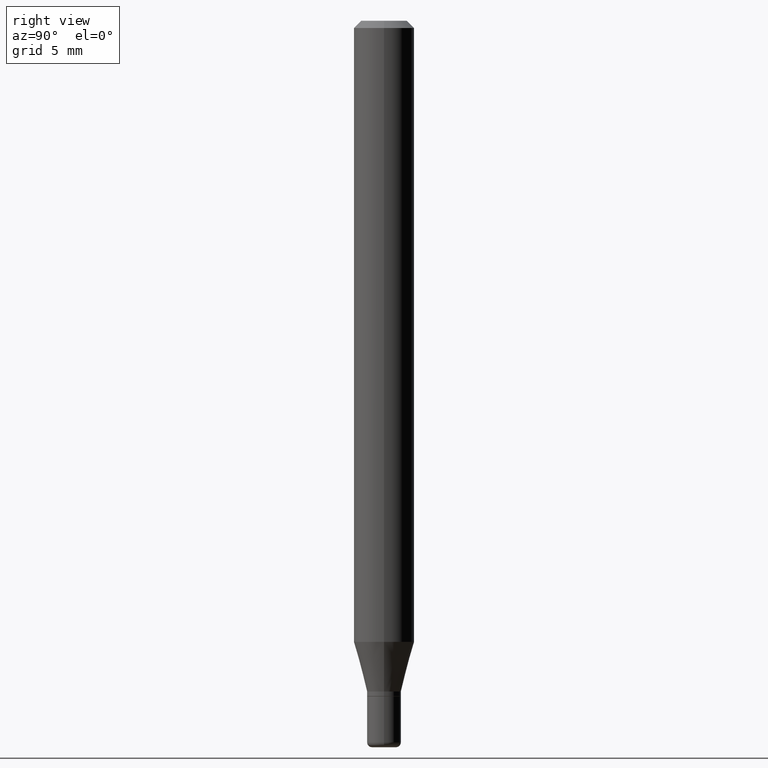
[diagram: clean part render]
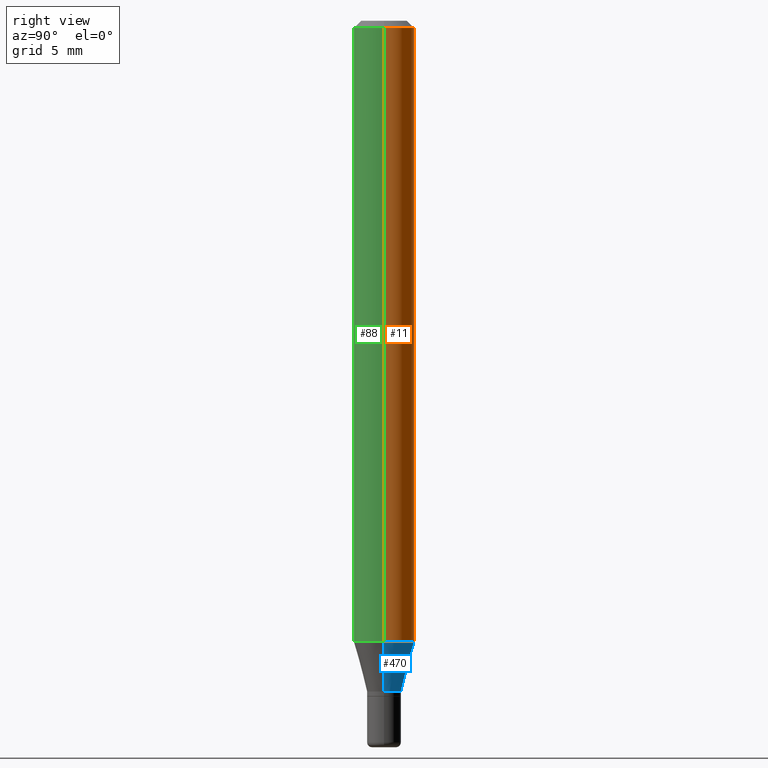
[diagram: same view with three faces highlighted in distinct colors, each labeled with its STEP entity id]
A machine part, right view with three faces highlighted in distinct colors.
Their STEP definitions:

[orange] entity #11 — the highlighted cylindrical surface (edge-blend (fillet) strip) has radius 1.5875 mm, axis along (-0, 0, 1).
#9 = EDGE_LOOP ( 'NONE', ( #506, #295, #185, #302 ) ) ;
#11 = ADVANCED_FACE ( 'NONE', ( #181 ), #218, .T. ) ;
#34 = CARTESIAN_POINT ( 'NONE',  ( 0.06250000000000000000, -4.913801213521515384E-15, -1.282368602791855938 ) ) ;
#65 = DIRECTION ( 'NONE',  ( 1.000000000000000000, -6.982962677686266711E-15, 4.876176775795935793E-29 ) ) ;
#68 = DIRECTION ( 'NONE',  ( -2.445468806185136597E-29, 3.491481338843145583E-15, 1.000000000000000000 ) ) ;
#93 = VERTEX_POINT ( 'NONE', #424 ) ;
#102 = DIRECTION ( 'NONE',  ( -2.445468806185136597E-29, 3.491481338843145583E-15, 1.000000000000000000 ) ) ;
#106 = CIRCLE ( 'NONE', #333, 0.06250000000000000000 ) ;
#109 = EDGE_CURVE ( 'NONE', #139, #408, #198, .T. ) ;
#126 = EDGE_CURVE ( 'NONE', #93, #408, #106, .T. ) ;
#139 = VERTEX_POINT ( 'NONE', #195 ) ;
#144 = CARTESIAN_POINT ( 'NONE',  ( 3.135992416158701602E-29, -4.477366046166122926E-15, -1.282368602791855938 ) ) ;
#152 = VECTOR ( 'NONE', #316, 39.37007874015748143 ) ;
#159 = CARTESIAN_POINT ( 'NONE',  ( -0.06250000000000000000, 4.440892098500626162E-16, -3.074334431409316114E-30 ) ) ;
#181 = FACE_OUTER_BOUND ( 'NONE', #9, .T. ) ;
#185 = ORIENTED_EDGE ( 'NONE', *, *, #126, .F. ) ;
#194 = LINE ( 'NONE', #461, #251 ) ;
#195 = CARTESIAN_POINT ( 'NONE',  ( -0.06250000000000000000, -4.033276836316059521E-15, -1.282368602791855938 ) ) ;
#198 = LINE ( 'NONE', #159, #152 ) ;
#217 = VERTEX_POINT ( 'NONE', #34 ) ;
#218 = CYLINDRICAL_SURFACE ( 'NONE', #269, 0.06250000000000000000 ) ;
#251 = VECTOR ( 'NONE', #277, 39.37007874015748143 ) ;
#262 = AXIS2_PLACEMENT_3D ( 'NONE', #144, #102, #395 ) ;
#269 = AXIS2_PLACEMENT_3D ( 'NONE', #495, #378, #65 ) ;
#273 = DIRECTION ( 'NONE',  ( 1.000000000000000000, -6.982962677686266711E-15, 0.000000000000000000 ) ) ;
#277 = DIRECTION ( 'NONE',  ( -2.445468806185136877E-29, 3.491481338843145188E-15, 1.000000000000000000 ) ) ;
#286 = CIRCLE ( 'NONE', #262, 0.06250000000000000000 ) ;
#295 = ORIENTED_EDGE ( 'NONE', *, *, #109, .T. ) ;
#302 = ORIENTED_EDGE ( 'NONE', *, *, #365, .F. ) ;
#307 = CARTESIAN_POINT ( 'NONE',  ( 3.668203209277632395E-31, -5.237222008264614861E-17, -0.01499999999999970281 ) ) ;
#316 = DIRECTION ( 'NONE',  ( -2.445468806185136877E-29, 3.491481338843145188E-15, 1.000000000000000000 ) ) ;
#333 = AXIS2_PLACEMENT_3D ( 'NONE', #307, #68, #273 ) ;
#344 = EDGE_CURVE ( 'NONE', #217, #139, #286, .T. ) ;
#365 = EDGE_CURVE ( 'NONE', #217, #93, #194, .T. ) ;
#378 = DIRECTION ( 'NONE',  ( -2.445468806185136597E-29, 3.491481338843145583E-15, 1.000000000000000000 ) ) ;
#395 = DIRECTION ( 'NONE',  ( 1.000000000000000000, -6.982962677686262766E-15, 0.000000000000000000 ) ) ;
#408 = VERTEX_POINT ( 'NONE', #426 ) ;
#424 = CARTESIAN_POINT ( 'NONE',  ( 0.06250000000000000000, -4.888073874380378612E-16, -0.01499999999999970281 ) ) ;
#426 = CARTESIAN_POINT ( 'NONE',  ( -0.06250000000000000000, -1.820779923274321795E-15, -0.01499999999999970281 ) ) ;
#461 = CARTESIAN_POINT ( 'NONE',  ( 0.06250000000000000000, -4.364351673553916694E-16, 3.047610484872459871E-30 ) ) ;
#495 = CARTESIAN_POINT ( 'NONE',  ( 0.000000000000000000, 0.000000000000000000, 0.000000000000000000 ) ) ;
#506 = ORIENTED_EDGE ( 'NONE', *, *, #344, .T. ) ;

[blue] entity #470 — the highlighted conical surface has half-angle 15 deg.
#12 = ORIENTED_EDGE ( 'NONE', *, *, #138, .T. ) ;
#34 = CARTESIAN_POINT ( 'NONE',  ( 0.06250000000000000000, -4.913801213521515384E-15, -1.282368602791855938 ) ) ;
#39 = DIRECTION ( 'NONE',  ( 1.000000000000000000, -6.982962677686280910E-15, 0.000000000000000000 ) ) ;
#84 = ORIENTED_EDGE ( 'NONE', *, *, #344, .F. ) ;
#100 = VERTEX_POINT ( 'NONE', #157 ) ;
#102 = DIRECTION ( 'NONE',  ( -2.445468806185136597E-29, 3.491481338843145583E-15, 1.000000000000000000 ) ) ;
#110 = CARTESIAN_POINT ( 'NONE',  ( -0.03499999999999998251, -4.310144266548890801E-15, -1.385000000000000009 ) ) ;
#112 = DIRECTION ( 'NONE',  ( -0.2588190451025207395, 5.211531920934546309E-15, 0.9659258262890682012 ) ) ;
#138 = EDGE_CURVE ( 'NONE', #100, #199, #176, .T. ) ;
#139 = VERTEX_POINT ( 'NONE', #195 ) ;
#141 = AXIS2_PLACEMENT_3D ( 'NONE', #392, #354, #515 ) ;
#144 = CARTESIAN_POINT ( 'NONE',  ( 3.135992416158701602E-29, -4.477366046166122926E-15, -1.282368602791855938 ) ) ;
#157 = CARTESIAN_POINT ( 'NONE',  ( 0.03499999999999998251, -5.080105348016776545E-15, -1.385000000000000009 ) ) ;
#161 = CONICAL_SURFACE ( 'NONE', #141, 0.03499999999999998251, 0.2617993877991494633 ) ;
#172 = ORIENTED_EDGE ( 'NONE', *, *, #228, .T. ) ;
#176 = CIRCLE ( 'NONE', #240, 0.03499999999999998251 ) ;
#191 = LINE ( 'NONE', #312, #350 ) ;
#195 = CARTESIAN_POINT ( 'NONE',  ( -0.06250000000000000000, -4.033276836316059521E-15, -1.282368602791855938 ) ) ;
#199 = VERTEX_POINT ( 'NONE', #110 ) ;
#217 = VERTEX_POINT ( 'NONE', #34 ) ;
#226 = CARTESIAN_POINT ( 'NONE',  ( 0.03499999999999998251, -5.080105348016776545E-15, -1.385000000000000009 ) ) ;
#228 = EDGE_CURVE ( 'NONE', #199, #139, #191, .T. ) ;
#229 = FACE_OUTER_BOUND ( 'NONE', #489, .T. ) ;
#240 = AXIS2_PLACEMENT_3D ( 'NONE', #348, #394, #39 ) ;
#262 = AXIS2_PLACEMENT_3D ( 'NONE', #144, #102, #395 ) ;
#286 = CIRCLE ( 'NONE', #262, 0.06250000000000000000 ) ;
#312 = CARTESIAN_POINT ( 'NONE',  ( -0.03499999999999998251, -4.587011696781721293E-15, -1.385000000000000009 ) ) ;
#344 = EDGE_CURVE ( 'NONE', #217, #139, #286, .T. ) ;
#348 = CARTESIAN_POINT ( 'NONE',  ( 3.386974296566414366E-29, -4.835701654297756579E-15, -1.385000000000000009 ) ) ;
#350 = VECTOR ( 'NONE', #112, 39.37007874015748854 ) ;
#354 = DIRECTION ( 'NONE',  ( -2.445468806185136597E-29, 3.491481338843145583E-15, 1.000000000000000000 ) ) ;
#361 = ORIENTED_EDGE ( 'NONE', *, *, #427, .F. ) ;
#392 = CARTESIAN_POINT ( 'NONE',  ( 3.386974296566414366E-29, -4.835701654297756579E-15, -1.385000000000000009 ) ) ;
#394 = DIRECTION ( 'NONE',  ( -2.445468806185136597E-29, 3.491481338843145583E-15, 1.000000000000000000 ) ) ;
#395 = DIRECTION ( 'NONE',  ( 1.000000000000000000, -6.982962677686262766E-15, 0.000000000000000000 ) ) ;
#423 = DIRECTION ( 'NONE',  ( 0.2588190451025207395, 1.565188264969626109E-15, 0.9659258262890682012 ) ) ;
#427 = EDGE_CURVE ( 'NONE', #100, #217, #468, .T. ) ;
#458 = VECTOR ( 'NONE', #423, 39.37007874015748854 ) ;
#468 = LINE ( 'NONE', #226, #458 ) ;
#470 = ADVANCED_FACE ( 'NONE', ( #229 ), #161, .T. ) ;
#489 = EDGE_LOOP ( 'NONE', ( #12, #172, #84, #361 ) ) ;
#515 = DIRECTION ( 'NONE',  ( 1.000000000000000000, -6.982962677686280910E-15, 0.000000000000000000 ) ) ;

[green] entity #88 — the highlighted cylindrical surface (edge-blend (fillet) strip) has radius 1.5875 mm, axis along (-0, 0, 1).
#20 = EDGE_CURVE ( 'NONE', #408, #93, #167, .T. ) ;
#22 = CARTESIAN_POINT ( 'NONE',  ( 3.668203209277632395E-31, -5.237222008264614861E-17, -0.01499999999999970281 ) ) ;
#34 = CARTESIAN_POINT ( 'NONE',  ( 0.06250000000000000000, -4.913801213521515384E-15, -1.282368602791855938 ) ) ;
#72 = CARTESIAN_POINT ( 'NONE',  ( 0.000000000000000000, 0.000000000000000000, 0.000000000000000000 ) ) ;
#88 = ADVANCED_FACE ( 'NONE', ( #469 ), #223, .T. ) ;
#93 = VERTEX_POINT ( 'NONE', #424 ) ;
#109 = EDGE_CURVE ( 'NONE', #139, #408, #198, .T. ) ;
#139 = VERTEX_POINT ( 'NONE', #195 ) ;
#149 = EDGE_CURVE ( 'NONE', #139, #217, #511, .T. ) ;
#152 = VECTOR ( 'NONE', #316, 39.37007874015748143 ) ;
#159 = CARTESIAN_POINT ( 'NONE',  ( -0.06250000000000000000, 4.440892098500626162E-16, -3.074334431409316114E-30 ) ) ;
#163 = EDGE_LOOP ( 'NONE', ( #297, #362, #416, #202 ) ) ;
#167 = CIRCLE ( 'NONE', #326, 0.06250000000000000000 ) ;
#175 = AXIS2_PLACEMENT_3D ( 'NONE', #72, #310, #278 ) ;
#178 = DIRECTION ( 'NONE',  ( -2.445468806185136597E-29, 3.491481338843145583E-15, 1.000000000000000000 ) ) ;
#187 = CARTESIAN_POINT ( 'NONE',  ( 3.135992416158701602E-29, -4.477366046166122926E-15, -1.282368602791855938 ) ) ;
#194 = LINE ( 'NONE', #461, #251 ) ;
#195 = CARTESIAN_POINT ( 'NONE',  ( -0.06250000000000000000, -4.033276836316059521E-15, -1.282368602791855938 ) ) ;
#198 = LINE ( 'NONE', #159, #152 ) ;
#202 = ORIENTED_EDGE ( 'NONE', *, *, #20, .F. ) ;
#217 = VERTEX_POINT ( 'NONE', #34 ) ;
#223 = CYLINDRICAL_SURFACE ( 'NONE', #175, 0.06250000000000000000 ) ;
#251 = VECTOR ( 'NONE', #277, 39.37007874015748143 ) ;
#277 = DIRECTION ( 'NONE',  ( -2.445468806185136877E-29, 3.491481338843145188E-15, 1.000000000000000000 ) ) ;
#278 = DIRECTION ( 'NONE',  ( 1.000000000000000000, -6.982962677686266711E-15, 4.876176775795935793E-29 ) ) ;
#297 = ORIENTED_EDGE ( 'NONE', *, *, #109, .F. ) ;
#310 = DIRECTION ( 'NONE',  ( -2.445468806185136597E-29, 3.491481338843145583E-15, 1.000000000000000000 ) ) ;
#316 = DIRECTION ( 'NONE',  ( -2.445468806185136877E-29, 3.491481338843145188E-15, 1.000000000000000000 ) ) ;
#326 = AXIS2_PLACEMENT_3D ( 'NONE', #22, #178, #456 ) ;
#362 = ORIENTED_EDGE ( 'NONE', *, *, #149, .T. ) ;
#365 = EDGE_CURVE ( 'NONE', #217, #93, #194, .T. ) ;
#376 = AXIS2_PLACEMENT_3D ( 'NONE', #187, #431, #467 ) ;
#408 = VERTEX_POINT ( 'NONE', #426 ) ;
#416 = ORIENTED_EDGE ( 'NONE', *, *, #365, .T. ) ;
#424 = CARTESIAN_POINT ( 'NONE',  ( 0.06250000000000000000, -4.888073874380378612E-16, -0.01499999999999970281 ) ) ;
#426 = CARTESIAN_POINT ( 'NONE',  ( -0.06250000000000000000, -1.820779923274321795E-15, -0.01499999999999970281 ) ) ;
#431 = DIRECTION ( 'NONE',  ( -2.445468806185136597E-29, 3.491481338843145583E-15, 1.000000000000000000 ) ) ;
#456 = DIRECTION ( 'NONE',  ( 1.000000000000000000, -6.982962677686266711E-15, 0.000000000000000000 ) ) ;
#461 = CARTESIAN_POINT ( 'NONE',  ( 0.06250000000000000000, -4.364351673553916694E-16, 3.047610484872459871E-30 ) ) ;
#467 = DIRECTION ( 'NONE',  ( 1.000000000000000000, -6.982962677686262766E-15, 0.000000000000000000 ) ) ;
#469 = FACE_OUTER_BOUND ( 'NONE', #163, .T. ) ;
#511 = CIRCLE ( 'NONE', #376, 0.06250000000000000000 ) ;